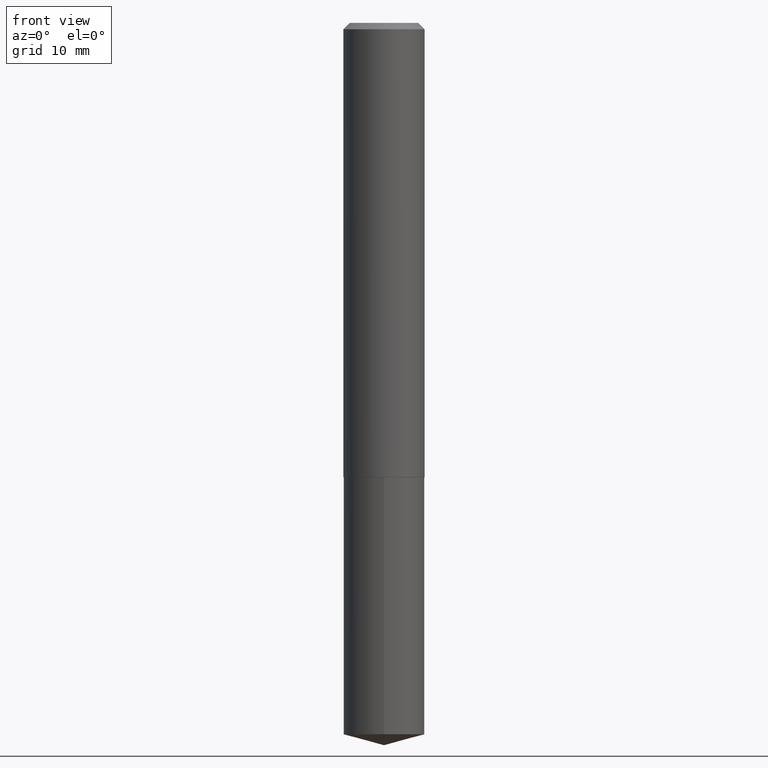
[diagram: clean part render]
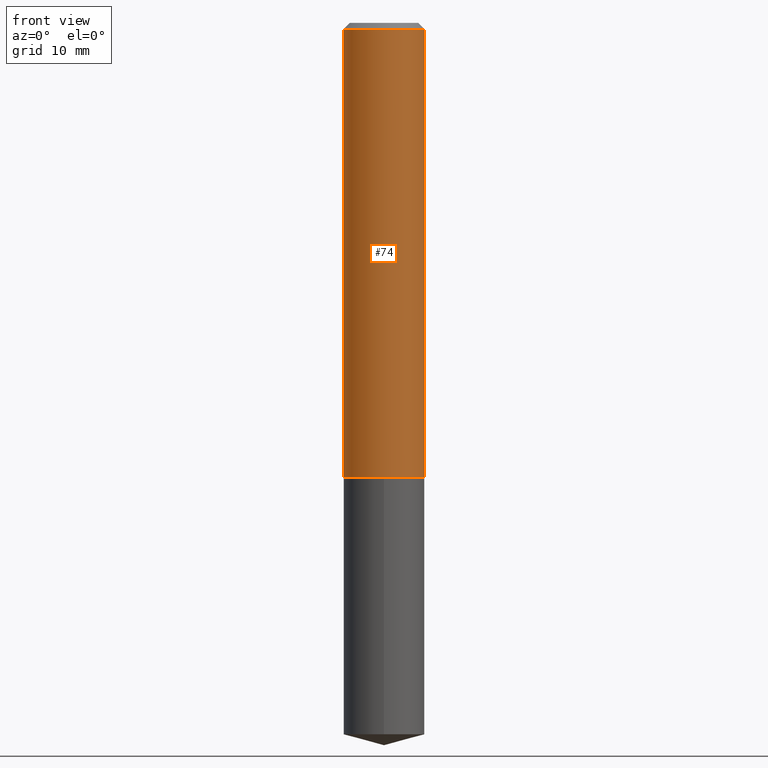
[diagram: same view with one face highlighted and labeled with its STEP entity id]
A machine part, front view. The second image highlights one B-rep face of the part: STEP entity #74.
In plain terms, the highlighted cylindrical surface (partial cylindrical patch) has radius 5 mm, axis along (-0, 0, 1).
Its self-contained STEP definition (entity closure, byte-faithful):
#3 = CYLINDRICAL_SURFACE ( 'NONE', #85, 0.1968500000000001915 ) ;
#7 = DIRECTION ( 'NONE',  ( -2.445468806185136877E-29, 3.491481338843145188E-15, 1.000000000000000000 ) ) ;
#10 = AXIS2_PLACEMENT_3D ( 'NONE', #104, #51, #142 ) ;
#25 = ORIENTED_EDGE ( 'NONE', *, *, #283, .F. ) ;
#51 = DIRECTION ( 'NONE',  ( -2.445468806185136597E-29, 3.491481338843145583E-15, 1.000000000000000000 ) ) ;
#55 = LINE ( 'NONE', #139, #281 ) ;
#60 = CARTESIAN_POINT ( 'NONE',  ( 0.1968500000000000250, -1.483704994941390709E-15, -0.03125000000000022898 ) ) ;
#67 = DIRECTION ( 'NONE',  ( 1.000000000000000000, -6.982962677686266711E-15, 4.876176775795935793E-29 ) ) ;
#74 = ADVANCED_FACE ( 'NONE', ( #352 ), #3, .T. ) ;
#75 = LINE ( 'NONE', #307, #152 ) ;
#79 = AXIS2_PLACEMENT_3D ( 'NONE', #335, #229, #196 ) ;
#85 = AXIS2_PLACEMENT_3D ( 'NONE', #357, #318, #67 ) ;
#96 = VERTEX_POINT ( 'NONE', #177 ) ;
#104 = CARTESIAN_POINT ( 'NONE',  ( 5.390302342593277355E-29, -7.695923167078060833E-15, -2.204199999999999715 ) ) ;
#134 = DIRECTION ( 'NONE',  ( -2.445468806185136877E-29, 3.491481338843145188E-15, 1.000000000000000000 ) ) ;
#139 = CARTESIAN_POINT ( 'NONE',  ( -0.1968500000000001915, 1.398703375343758577E-15, -9.682923725166790684E-30 ) ) ;
#142 = DIRECTION ( 'NONE',  ( 1.000000000000000000, -6.982962677686271444E-15, 0.000000000000000000 ) ) ;
#152 = VECTOR ( 'NONE', #134, 39.37007874015748143 ) ;
#168 = EDGE_CURVE ( 'NONE', #96, #179, #222, .T. ) ;
#176 = ORIENTED_EDGE ( 'NONE', *, *, #168, .T. ) ;
#177 = CARTESIAN_POINT ( 'NONE',  ( -0.1968500000000003303, -6.297219791734301467E-15, -2.204199999999999715 ) ) ;
#179 = VERTEX_POINT ( 'NONE', #191 ) ;
#181 = CIRCLE ( 'NONE', #79, 0.1968500000000000250 ) ;
#191 = CARTESIAN_POINT ( 'NONE',  ( 0.1968500000000003303, -9.070519370180605597E-15, -2.204199999999999715 ) ) ;
#196 = DIRECTION ( 'NONE',  ( 1.000000000000000000, -6.982962677686265922E-15, 0.000000000000000000 ) ) ;
#220 = CARTESIAN_POINT ( 'NONE',  ( -0.1968500000000000250, -2.503812604114694813E-15, -0.03125000000000022898 ) ) ;
#222 = CIRCLE ( 'NONE', #10, 0.1968500000000003303 ) ;
#229 = DIRECTION ( 'NONE',  ( -2.445468806185136597E-29, 3.491481338843145583E-15, 1.000000000000000000 ) ) ;
#239 = ORIENTED_EDGE ( 'NONE', *, *, #332, .F. ) ;
#281 = VECTOR ( 'NONE', #7, 39.37007874015748143 ) ;
#282 = EDGE_LOOP ( 'NONE', ( #25, #176, #286, #239 ) ) ;
#283 = EDGE_CURVE ( 'NONE', #96, #320, #55, .T. ) ;
#286 = ORIENTED_EDGE ( 'NONE', *, *, #296, .T. ) ;
#296 = EDGE_CURVE ( 'NONE', #179, #386, #75, .T. ) ;
#307 = CARTESIAN_POINT ( 'NONE',  ( 0.1968500000000001915, -1.374596203102542989E-15, 9.598753983154309266E-30 ) ) ;
#318 = DIRECTION ( 'NONE',  ( -2.445468806185136597E-29, 3.491481338843145583E-15, 1.000000000000000000 ) ) ;
#320 = VERTEX_POINT ( 'NONE', #220 ) ;
#332 = EDGE_CURVE ( 'NONE', #320, #386, #181, .T. ) ;
#335 = CARTESIAN_POINT ( 'NONE',  ( 7.642090019328607917E-31, -1.091087918388491006E-16, -0.03125000000000022898 ) ) ;
#352 = FACE_OUTER_BOUND ( 'NONE', #282, .T. ) ;
#357 = CARTESIAN_POINT ( 'NONE',  ( 0.000000000000000000, 0.000000000000000000, 0.000000000000000000 ) ) ;
#386 = VERTEX_POINT ( 'NONE', #60 ) ;